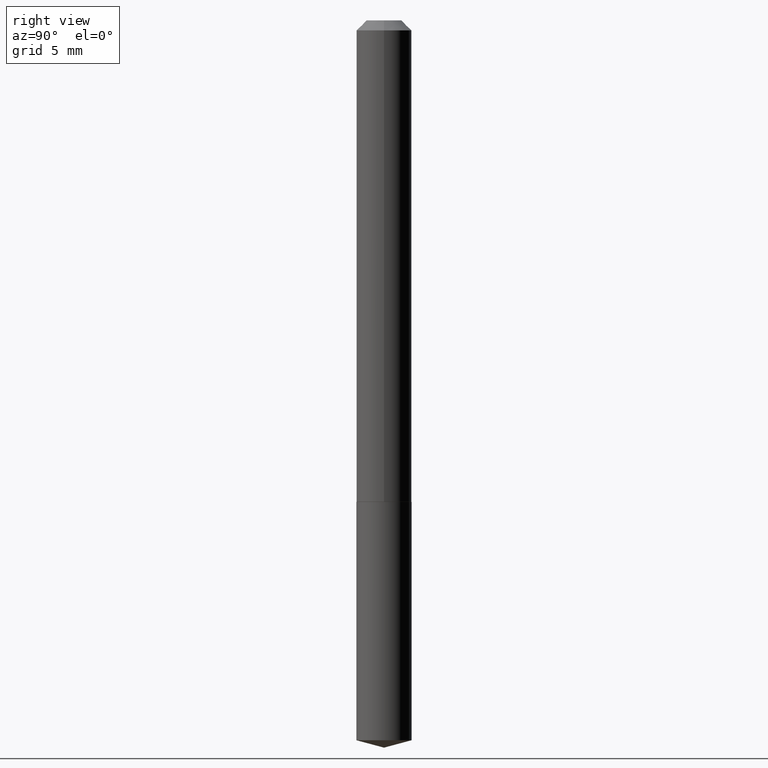
[diagram: clean part render]
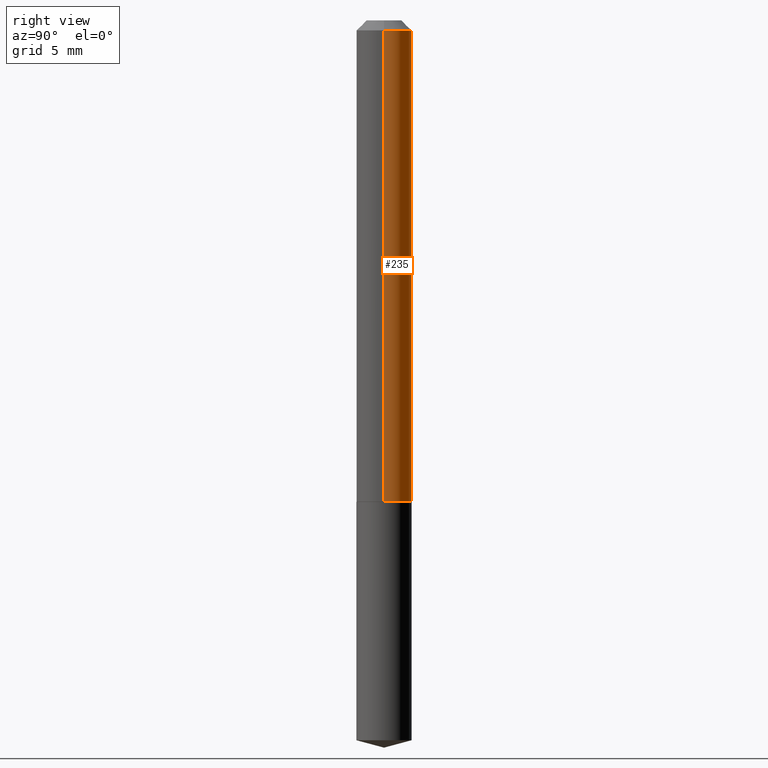
[diagram: same view with one face highlighted and labeled with its STEP entity id]
A machine part, right view. The second image highlights one B-rep face of the part: STEP entity #235.
In plain terms, the highlighted cylindrical surface (edge-blend (fillet) strip) has radius 2.1996 mm, axis along (-0, 0, 1).
Its self-contained STEP definition (entity closure, byte-faithful):
#26 = VERTEX_POINT ( 'NONE', #156 ) ;
#28 = VECTOR ( 'NONE', #221, 39.37007874015748143 ) ;
#38 = FACE_OUTER_BOUND ( 'NONE', #141, .T. ) ;
#47 = ORIENTED_EDGE ( 'NONE', *, *, #133, .F. ) ;
#59 = VERTEX_POINT ( 'NONE', #120 ) ;
#66 = CARTESIAN_POINT ( 'NONE',  ( -0.08660000000000017684, -4.661345738225397323E-15, -1.511300000000000088 ) ) ;
#68 = CYLINDRICAL_SURFACE ( 'NONE', #192, 0.08660000000000007969 ) ;
#92 = EDGE_CURVE ( 'NONE', #287, #26, #271, .T. ) ;
#93 = CARTESIAN_POINT ( 'NONE',  ( 0.08660000000000007969, -6.047245678876313188E-16, 4.222769087839284057E-30 ) ) ;
#98 = CIRCLE ( 'NONE', #169, 0.08660000000000017684 ) ;
#99 = DIRECTION ( 'NONE',  ( -2.445468806185136597E-29, 3.491481338843145583E-15, 1.000000000000000000 ) ) ;
#111 = CIRCLE ( 'NONE', #264, 0.08659999999999998255 ) ;
#113 = ORIENTED_EDGE ( 'NONE', *, *, #92, .T. ) ;
#120 = CARTESIAN_POINT ( 'NONE',  ( 0.08660000000000017684, -5.881400315281277448E-15, -1.511300000000000088 ) ) ;
#125 = VECTOR ( 'NONE', #323, 39.37007874015748143 ) ;
#133 = EDGE_CURVE ( 'NONE', #59, #148, #357, .T. ) ;
#136 = DIRECTION ( 'NONE',  ( 1.000000000000000000, -6.982962677686265133E-15, 0.000000000000000000 ) ) ;
#141 = EDGE_LOOP ( 'NONE', ( #315, #113, #299, #47 ) ) ;
#148 = VERTEX_POINT ( 'NONE', #307 ) ;
#156 = CARTESIAN_POINT ( 'NONE',  ( -0.08659999999999998255, -2.077562260447999006E-15, -0.03125000000000021511 ) ) ;
#160 = CARTESIAN_POINT ( 'NONE',  ( -0.08660000000000007969, 6.153300091682473272E-16, -4.259797788160751610E-30 ) ) ;
#169 = AXIS2_PLACEMENT_3D ( 'NONE', #246, #248, #136 ) ;
#177 = EDGE_CURVE ( 'NONE', #148, #26, #111, .T. ) ;
#192 = AXIS2_PLACEMENT_3D ( 'NONE', #198, #99, #275 ) ;
#198 = CARTESIAN_POINT ( 'NONE',  ( 0.000000000000000000, 0.000000000000000000, 0.000000000000000000 ) ) ;
#221 = DIRECTION ( 'NONE',  ( -2.445468806185136877E-29, 3.491481338843145188E-15, 1.000000000000000000 ) ) ;
#235 = ADVANCED_FACE ( 'NONE', ( #38 ), #68, .T. ) ;
#246 = CARTESIAN_POINT ( 'NONE',  ( 3.695837006787596715E-29, -5.276675747393645735E-15, -1.511300000000000088 ) ) ;
#248 = DIRECTION ( 'NONE',  ( -2.445468806185136597E-29, 3.491481338843145583E-15, 1.000000000000000000 ) ) ;
#264 = AXIS2_PLACEMENT_3D ( 'NONE', #308, #280, #310 ) ;
#271 = LINE ( 'NONE', #160, #125 ) ;
#274 = EDGE_CURVE ( 'NONE', #59, #287, #98, .T. ) ;
#275 = DIRECTION ( 'NONE',  ( 1.000000000000000000, -6.982962677686267499E-15, 4.876176775795935793E-29 ) ) ;
#280 = DIRECTION ( 'NONE',  ( -2.445468806185136597E-29, 3.491481338843145583E-15, 1.000000000000000000 ) ) ;
#287 = VERTEX_POINT ( 'NONE', #66 ) ;
#299 = ORIENTED_EDGE ( 'NONE', *, *, #177, .F. ) ;
#307 = CARTESIAN_POINT ( 'NONE',  ( 0.08659999999999998255, -7.138333597264797291E-16, -0.03125000000000021511 ) ) ;
#308 = CARTESIAN_POINT ( 'NONE',  ( 7.642090019328603538E-31, -1.091087918388490390E-16, -0.03125000000000021511 ) ) ;
#310 = DIRECTION ( 'NONE',  ( 1.000000000000000000, -6.982962677686267499E-15, 0.000000000000000000 ) ) ;
#315 = ORIENTED_EDGE ( 'NONE', *, *, #274, .T. ) ;
#323 = DIRECTION ( 'NONE',  ( -2.445468806185136877E-29, 3.491481338843145188E-15, 1.000000000000000000 ) ) ;
#357 = LINE ( 'NONE', #93, #28 ) ;